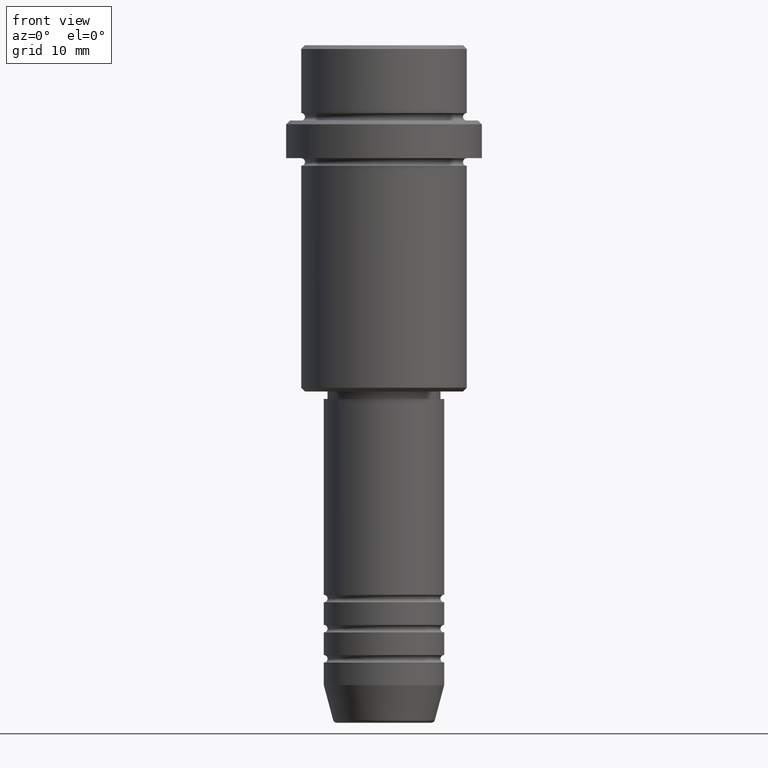
[diagram: clean part render]
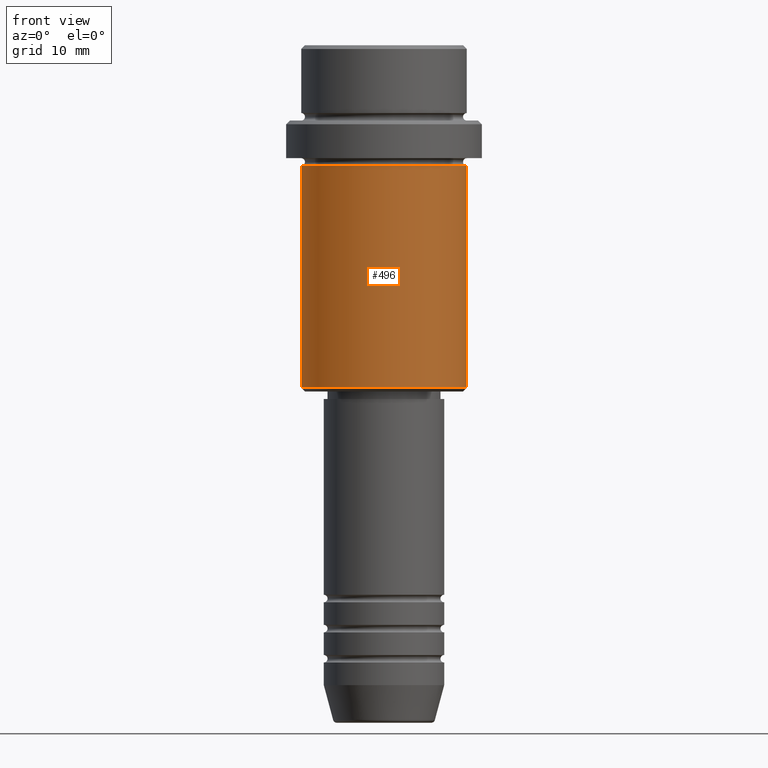
[diagram: same view with one face highlighted and labeled with its STEP entity id]
A machine part, front view. The second image highlights one B-rep face of the part: STEP entity #496.
In plain terms, the highlighted cylindrical surface (partial cylindrical patch) has radius 11 mm, axis along (-0, -0, 1).
Its self-contained STEP definition (entity closure, byte-faithful):
#46 = DIRECTION ( 'NONE',  ( -0.000000000000000000, -0.000000000000000000, 1.000000000000000000 ) ) ;
#71 = CARTESIAN_POINT ( 'NONE',  ( -10.99999999999998757, 1.347111479062086827E-15, 0.000000000000000000 ) ) ;
#100 = VECTOR ( 'NONE', #1375, 1000.000000000000000 ) ;
#114 = CARTESIAN_POINT ( 'NONE',  ( 10.99999999999998757, 0.000000000000000000, 0.000000000000000000 ) ) ;
#146 = DIRECTION ( 'NONE',  ( 1.000000000000000000, 0.000000000000000000, 0.000000000000000000 ) ) ;
#148 = EDGE_CURVE ( 'NONE', #309, #1197, #1110, .T. ) ;
#199 = EDGE_CURVE ( 'NONE', #403, #1197, #711, .T. ) ;
#224 = DIRECTION ( 'NONE',  ( -0.000000000000000000, -0.000000000000000000, 1.000000000000000000 ) ) ;
#273 = AXIS2_PLACEMENT_3D ( 'NONE', #795, #46, #1149 ) ;
#299 = ORIENTED_EDGE ( 'NONE', *, *, #1043, .T. ) ;
#309 = VERTEX_POINT ( 'NONE', #800 ) ;
#317 = DIRECTION ( 'NONE',  ( -0.000000000000000000, -0.000000000000000000, 1.000000000000000000 ) ) ;
#361 = FACE_OUTER_BOUND ( 'NONE', #380, .T. ) ;
#380 = EDGE_LOOP ( 'NONE', ( #908, #299, #1243, #408 ) ) ;
#385 = DIRECTION ( 'NONE',  ( -0.000000000000000000, -0.000000000000000000, 1.000000000000000000 ) ) ;
#403 = VERTEX_POINT ( 'NONE', #653 ) ;
#408 = ORIENTED_EDGE ( 'NONE', *, *, #199, .F. ) ;
#442 = CARTESIAN_POINT ( 'NONE',  ( 10.99999999999997158, 0.000000000000000000, -16.00000000000000355 ) ) ;
#496 = ADVANCED_FACE ( 'NONE', ( #361 ), #691, .T. ) ;
#594 = AXIS2_PLACEMENT_3D ( 'NONE', #869, #317, #864 ) ;
#653 = CARTESIAN_POINT ( 'NONE',  ( -10.99999999999997158, 1.347111479062085841E-15, -16.00000000000000355 ) ) ;
#691 = CYLINDRICAL_SURFACE ( 'NONE', #732, 10.99999999999998757 ) ;
#708 = CARTESIAN_POINT ( 'NONE',  ( 0.000000000000000000, 0.000000000000000000, 0.000000000000000000 ) ) ;
#711 = CIRCLE ( 'NONE', #273, 10.99999999999997158 ) ;
#732 = AXIS2_PLACEMENT_3D ( 'NONE', #708, #385, #146 ) ;
#795 = CARTESIAN_POINT ( 'NONE',  ( 0.000000000000000000, 0.000000000000000000, -16.00000000000000355 ) ) ;
#799 = VERTEX_POINT ( 'NONE', #1326 ) ;
#800 = CARTESIAN_POINT ( 'NONE',  ( 10.99999999999998757, 0.000000000000000000, -45.50000000000000000 ) ) ;
#864 = DIRECTION ( 'NONE',  ( -1.000000000000000000, 0.000000000000000000, 0.000000000000000000 ) ) ;
#869 = CARTESIAN_POINT ( 'NONE',  ( 0.000000000000000000, 0.000000000000000000, -45.50000000000000000 ) ) ;
#908 = ORIENTED_EDGE ( 'NONE', *, *, #910, .F. ) ;
#910 = EDGE_CURVE ( 'NONE', #799, #403, #1131, .T. ) ;
#919 = VECTOR ( 'NONE', #224, 1000.000000000000000 ) ;
#1043 = EDGE_CURVE ( 'NONE', #799, #309, #1167, .T. ) ;
#1110 = LINE ( 'NONE', #114, #919 ) ;
#1131 = LINE ( 'NONE', #71, #100 ) ;
#1149 = DIRECTION ( 'NONE',  ( 1.000000000000000000, 0.000000000000000000, 0.000000000000000000 ) ) ;
#1167 = CIRCLE ( 'NONE', #594, 10.99999999999998757 ) ;
#1197 = VERTEX_POINT ( 'NONE', #442 ) ;
#1243 = ORIENTED_EDGE ( 'NONE', *, *, #148, .T. ) ;
#1326 = CARTESIAN_POINT ( 'NONE',  ( -10.99999999999998757, 1.347111479062086827E-15, -45.50000000000000000 ) ) ;
#1375 = DIRECTION ( 'NONE',  ( -0.000000000000000000, -0.000000000000000000, 1.000000000000000000 ) ) ;